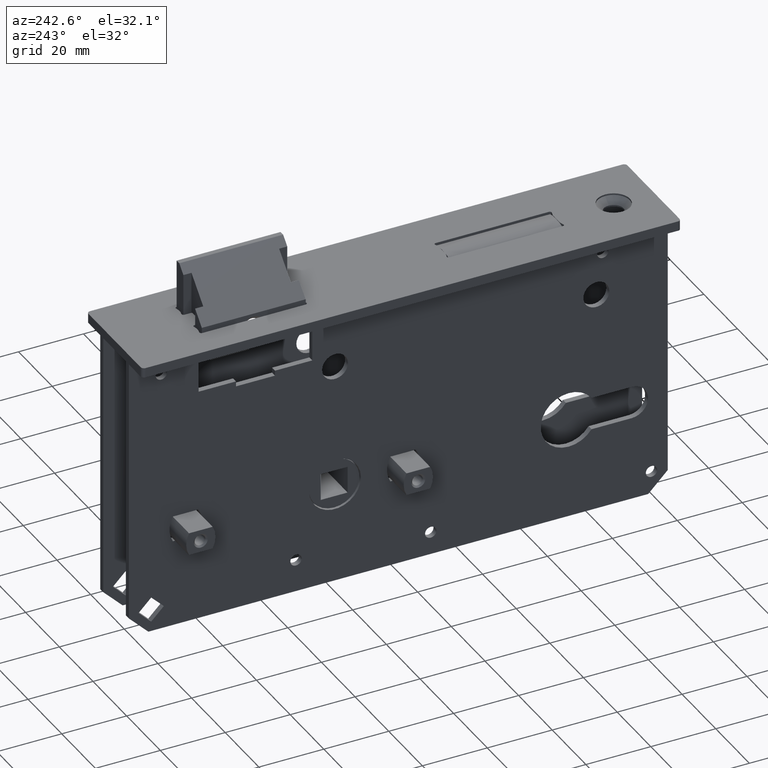
[diagram: clean part render]
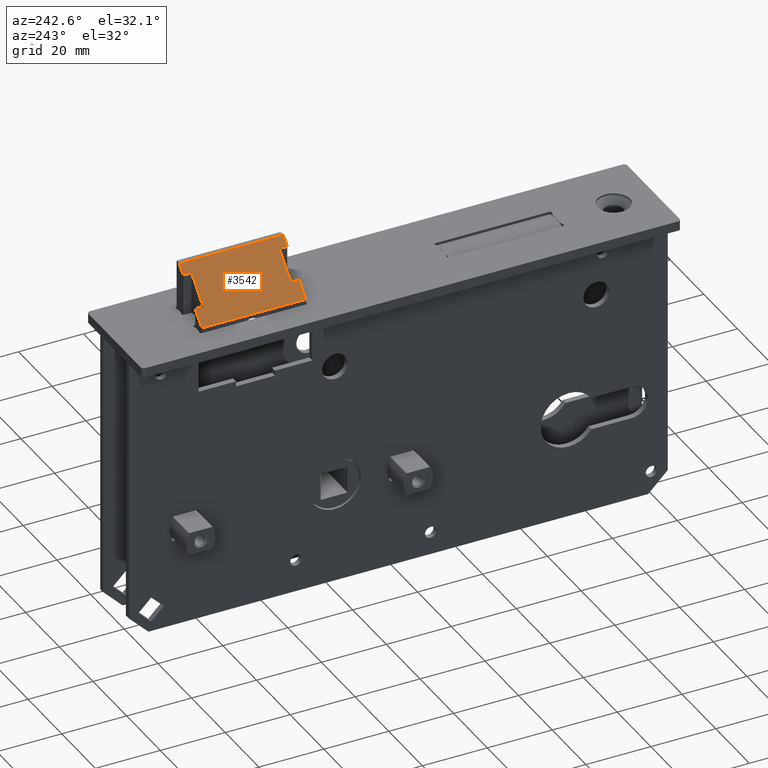
[diagram: same view with one face highlighted and labeled with its STEP entity id]
A machine part, auxiliary view. The second image highlights one B-rep face of the part: STEP entity #3542.
In plain terms, the highlighted planar face has unit normal (0.7071, -0, -0.7071).
Its self-contained STEP definition (entity closure, byte-faithful):
#236 = VECTOR ( 'NONE', #8011, 1000.000000000000000 ) ;
#266 = LINE ( 'NONE', #7986, #11444 ) ;
#365 = VERTEX_POINT ( 'NONE', #7256 ) ;
#404 = ORIENTED_EDGE ( 'NONE', *, *, #13355, .F. ) ;
#517 = DIRECTION ( 'NONE',  ( -0.7071067811865443531, 0.000000000000000000, -0.7071067811865506814 ) ) ;
#883 = CARTESIAN_POINT ( 'NONE',  ( -7.475000000000016520, 16.00000000000000711, -2.900000000000000799 ) ) ;
#1706 = CARTESIAN_POINT ( 'NONE',  ( -7.475000000000044054, -16.00000000000000000, -2.900000000000000799 ) ) ;
#1841 = CARTESIAN_POINT ( 'NONE',  ( -7.475000000000044054, -16.00000000000000000, -2.900000000000000799 ) ) ;
#1890 = DIRECTION ( 'NONE',  ( -0.7071067811865443531, 0.000000000000000000, -0.7071067811865506814 ) ) ;
#2036 = CARTESIAN_POINT ( 'NONE',  ( 3.474999999999999201, 16.00000000000000000, 8.050000000000112621 ) ) ;
#2429 = VECTOR ( 'NONE', #6901, 1000.000000000000000 ) ;
#2501 = DIRECTION ( 'NONE',  ( -0.7071067811865443531, 5.492394328418082340E-16, -0.7071067811865506814 ) ) ;
#2667 = ORIENTED_EDGE ( 'NONE', *, *, #19847, .F. ) ;
#2712 = DIRECTION ( 'NONE',  ( -3.122502256758254348E-15, -1.000000000000000000, -2.255140518769871705E-15 ) ) ;
#2772 = LINE ( 'NONE', #883, #3983 ) ;
#2861 = VERTEX_POINT ( 'NONE', #8802 ) ;
#2903 = CARTESIAN_POINT ( 'NONE',  ( 5.924999999999832845, -16.00000000000000000, 10.50000000000000000 ) ) ;
#2919 = LINE ( 'NONE', #8205, #8273 ) ;
#3070 = EDGE_CURVE ( 'NONE', #14948, #365, #5642, .T. ) ;
#3162 = CARTESIAN_POINT ( 'NONE',  ( 5.924999999999832845, -16.00000000000001066, 10.49999999999999822 ) ) ;
#3406 = CARTESIAN_POINT ( 'NONE',  ( -7.475000000000016520, 16.00000000000000711, -2.900000000000000799 ) ) ;
#3424 = CARTESIAN_POINT ( 'NONE',  ( 4.699999999999931788, -13.50000000000000178, 9.275000000000080291 ) ) ;
#3449 = VECTOR ( 'NONE', #12611, 1000.000000000000000 ) ;
#3542 = ADVANCED_FACE ( 'NONE', ( #7366 ), #11268, .F. ) ;
#3546 = DIRECTION ( 'NONE',  ( 3.122502256758254348E-15, -1.000000000000000000, 3.989863994746693394E-15 ) ) ;
#3586 = CARTESIAN_POINT ( 'NONE',  ( -3.474999999999993872, -13.50000000000000178, 1.100000000000081801 ) ) ;
#3795 = VECTOR ( 'NONE', #6433, 1000.000000000000000 ) ;
#3983 = VECTOR ( 'NONE', #5384, 1000.000000000000000 ) ;
#3987 = VECTOR ( 'NONE', #3546, 1000.000000000000000 ) ;
#4085 = CARTESIAN_POINT ( 'NONE',  ( -3.474999999999992983, -13.49999999999998046, 1.100000000000083578 ) ) ;
#4159 = EDGE_CURVE ( 'NONE', #13729, #10153, #266, .T. ) ;
#4630 = ORIENTED_EDGE ( 'NONE', *, *, #16726, .T. ) ;
#4967 = ORIENTED_EDGE ( 'NONE', *, *, #4159, .F. ) ;
#5120 = VERTEX_POINT ( 'NONE', #3586 ) ;
#5384 = DIRECTION ( 'NONE',  ( -0.7071067811865443531, 5.492394328418082340E-16, -0.7071067811865506814 ) ) ;
#5642 = LINE ( 'NONE', #3162, #3449 ) ;
#6139 = VECTOR ( 'NONE', #2501, 1000.000000000000000 ) ;
#6231 = ORIENTED_EDGE ( 'NONE', *, *, #3070, .T. ) ;
#6433 = DIRECTION ( 'NONE',  ( 8.673617379884027583E-16, 1.000000000000000000, -0.000000000000000000 ) ) ;
#6614 = VECTOR ( 'NONE', #14846, 1000.000000000000000 ) ;
#6638 = AXIS2_PLACEMENT_3D ( 'NONE', #16056, #11213, #1890 ) ;
#6901 = DIRECTION ( 'NONE',  ( -0.7071067811865443531, 5.492394328418082340E-16, -0.7071067811865506814 ) ) ;
#7256 = CARTESIAN_POINT ( 'NONE',  ( 5.924999999999861267, 15.99999999999999645, 10.49999999999999822 ) ) ;
#7366 = FACE_OUTER_BOUND ( 'NONE', #16041, .T. ) ;
#7562 = LINE ( 'NONE', #13252, #2429 ) ;
#7613 = EDGE_CURVE ( 'NONE', #11517, #9826, #18809, .T. ) ;
#7899 = VECTOR ( 'NONE', #2712, 1000.000000000000000 ) ;
#7986 = CARTESIAN_POINT ( 'NONE',  ( 3.474999999999992983, 13.50000000000000711, 8.050000000000105516 ) ) ;
#8011 = DIRECTION ( 'NONE',  ( -0.7071067811865443531, 5.492394328418082340E-16, -0.7071067811865506814 ) ) ;
#8205 = CARTESIAN_POINT ( 'NONE',  ( 3.475000000000007638, -16.00000000000001066, 8.050000000000148148 ) ) ;
#8273 = VECTOR ( 'NONE', #19025, 1000.000000000000000 ) ;
#8636 = LINE ( 'NONE', #4085, #7899 ) ;
#8802 = CARTESIAN_POINT ( 'NONE',  ( -3.474999999999992983, 13.50000000000000178, 1.100000000000060485 ) ) ;
#9118 = ORIENTED_EDGE ( 'NONE', *, *, #16847, .T. ) ;
#9292 = LINE ( 'NONE', #16373, #6614 ) ;
#9491 = CARTESIAN_POINT ( 'NONE',  ( 3.474999999999999645, -13.50000000000000178, 8.050000000000137490 ) ) ;
#9753 = CARTESIAN_POINT ( 'NONE',  ( -3.475000000000000533, 15.99999999999996270, 1.100000000000050493 ) ) ;
#9769 = CARTESIAN_POINT ( 'NONE',  ( 3.475000000000005862, -16.00000000000000711, 8.050000000000148148 ) ) ;
#9826 = VERTEX_POINT ( 'NONE', #3406 ) ;
#9864 = CARTESIAN_POINT ( 'NONE',  ( -3.475000000000000533, 16.00000000000000355, 1.100000000000050493 ) ) ;
#10153 = VERTEX_POINT ( 'NONE', #2036 ) ;
#10232 = CARTESIAN_POINT ( 'NONE',  ( -3.475000000000000533, -16.00000000000000355, 1.100000000000078249 ) ) ;
#11213 = DIRECTION ( 'NONE',  ( 0.7071067811865506814, -6.133173666733518246E-16, -0.7071067811865443531 ) ) ;
#11268 = PLANE ( 'NONE',  #6638 ) ;
#11444 = VECTOR ( 'NONE', #18806, 1000.000000000000000 ) ;
#11452 = ORIENTED_EDGE ( 'NONE', *, *, #16193, .F. ) ;
#11517 = VERTEX_POINT ( 'NONE', #1841 ) ;
#12139 = ORIENTED_EDGE ( 'NONE', *, *, #18847, .F. ) ;
#12496 = CARTESIAN_POINT ( 'NONE',  ( 3.474999999999992983, 13.50000000000000178, 8.050000000000109068 ) ) ;
#12611 = DIRECTION ( 'NONE',  ( 8.673617379884027583E-16, 1.000000000000000000, -0.000000000000000000 ) ) ;
#13252 = CARTESIAN_POINT ( 'NONE',  ( -7.475000000000044054, -16.00000000000000000, -2.900000000000000799 ) ) ;
#13355 = EDGE_CURVE ( 'NONE', #13917, #2861, #14928, .T. ) ;
#13617 = LINE ( 'NONE', #17251, #236 ) ;
#13729 = VERTEX_POINT ( 'NONE', #12496 ) ;
#13917 = VERTEX_POINT ( 'NONE', #9864 ) ;
#14763 = CARTESIAN_POINT ( 'NONE',  ( -7.475000000000016520, 16.00000000000000711, -2.900000000000000799 ) ) ;
#14797 = ORIENTED_EDGE ( 'NONE', *, *, #18398, .F. ) ;
#14846 = DIRECTION ( 'NONE',  ( 0.7071067811865443531, 0.000000000000000000, 0.7071067811865506814 ) ) ;
#14928 = LINE ( 'NONE', #9753, #3987 ) ;
#14948 = VERTEX_POINT ( 'NONE', #2903 ) ;
#15039 = EDGE_CURVE ( 'NONE', #15340, #5120, #16827, .T. ) ;
#15340 = VERTEX_POINT ( 'NONE', #9491 ) ;
#16041 = EDGE_LOOP ( 'NONE', ( #18989, #12139, #16538, #6231, #4630, #4967, #2667, #404, #9118, #19212, #11452, #14797 ) ) ;
#16056 = CARTESIAN_POINT ( 'NONE',  ( -7.475000000000044054, -16.00000000000000000, -2.900000000000000799 ) ) ;
#16193 = EDGE_CURVE ( 'NONE', #17963, #11517, #13617, .T. ) ;
#16373 = CARTESIAN_POINT ( 'NONE',  ( 1.224999999999976996, 13.50000000000000178, 5.800000000000072653 ) ) ;
#16538 = ORIENTED_EDGE ( 'NONE', *, *, #16878, .F. ) ;
#16726 = EDGE_CURVE ( 'NONE', #365, #10153, #2772, .T. ) ;
#16827 = LINE ( 'NONE', #3424, #18814 ) ;
#16847 = EDGE_CURVE ( 'NONE', #13917, #9826, #18459, .T. ) ;
#16878 = EDGE_CURVE ( 'NONE', #14948, #18859, #7562, .T. ) ;
#17251 = CARTESIAN_POINT ( 'NONE',  ( -7.475000000000044054, -16.00000000000000000, -2.900000000000000799 ) ) ;
#17963 = VERTEX_POINT ( 'NONE', #10232 ) ;
#18398 = EDGE_CURVE ( 'NONE', #5120, #17963, #8636, .T. ) ;
#18459 = LINE ( 'NONE', #14763, #6139 ) ;
#18806 = DIRECTION ( 'NONE',  ( 2.775557561562893718E-15, 1.000000000000000000, 1.908195823574507920E-15 ) ) ;
#18809 = LINE ( 'NONE', #1706, #3795 ) ;
#18814 = VECTOR ( 'NONE', #517, 1000.000000000000000 ) ;
#18847 = EDGE_CURVE ( 'NONE', #18859, #15340, #2919, .T. ) ;
#18859 = VERTEX_POINT ( 'NONE', #9769 ) ;
#18989 = ORIENTED_EDGE ( 'NONE', *, *, #15039, .F. ) ;
#19025 = DIRECTION ( 'NONE',  ( -3.122502256758254348E-15, 1.000000000000000000, -3.989863994746693394E-15 ) ) ;
#19212 = ORIENTED_EDGE ( 'NONE', *, *, #7613, .F. ) ;
#19847 = EDGE_CURVE ( 'NONE', #2861, #13729, #9292, .T. ) ;